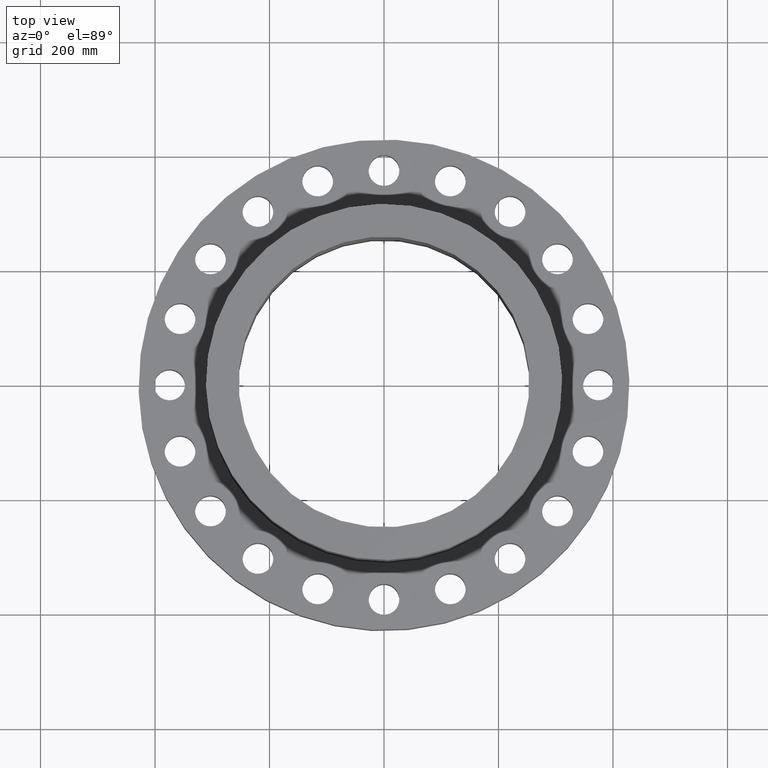
[diagram: clean part render]
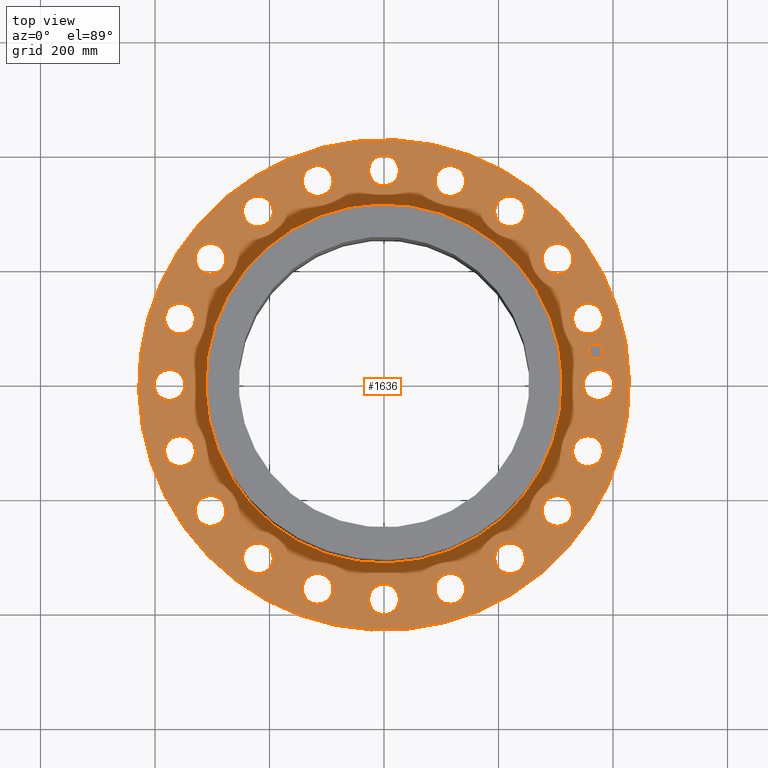
[diagram: same view with one face highlighted and labeled with its STEP entity id]
A machine part, top view. The second image highlights one B-rep face of the part: STEP entity #1636.
In plain terms, the highlighted planar face has unit normal (0, 0, -1).
Its self-contained STEP definition (entity closure, byte-faithful):
#51=AXIS2_PLACEMENT_3D('Circle Axis2P3D',#49,#50,$) ;
#470=AXIS2_PLACEMENT_3D('Circle Axis2P3D',#468,#469,$) ;
#494=AXIS2_PLACEMENT_3D('Circle Axis2P3D',#492,#493,$) ;
#513=AXIS2_PLACEMENT_3D('Circle Axis2P3D',#511,#512,$) ;
#530=AXIS2_PLACEMENT_3D('Circle Axis2P3D',#528,#529,$) ;
#565=AXIS2_PLACEMENT_3D('Circle Axis2P3D',#563,#564,$) ;
#722=AXIS2_PLACEMENT_3D('Circle Axis2P3D',#720,#721,$) ;
#741=AXIS2_PLACEMENT_3D('Circle Axis2P3D',#739,#740,$) ;
#765=AXIS2_PLACEMENT_3D('Circle Axis2P3D',#763,#764,$) ;
#784=AXIS2_PLACEMENT_3D('Circle Axis2P3D',#782,#783,$) ;
#808=AXIS2_PLACEMENT_3D('Circle Axis2P3D',#806,#807,$) ;
#827=AXIS2_PLACEMENT_3D('Circle Axis2P3D',#825,#826,$) ;
#851=AXIS2_PLACEMENT_3D('Circle Axis2P3D',#849,#850,$) ;
#870=AXIS2_PLACEMENT_3D('Circle Axis2P3D',#868,#869,$) ;
#894=AXIS2_PLACEMENT_3D('Circle Axis2P3D',#892,#893,$) ;
#913=AXIS2_PLACEMENT_3D('Circle Axis2P3D',#911,#912,$) ;
#937=AXIS2_PLACEMENT_3D('Circle Axis2P3D',#935,#936,$) ;
#956=AXIS2_PLACEMENT_3D('Circle Axis2P3D',#954,#955,$) ;
#980=AXIS2_PLACEMENT_3D('Circle Axis2P3D',#978,#979,$) ;
#999=AXIS2_PLACEMENT_3D('Circle Axis2P3D',#997,#998,$) ;
#1023=AXIS2_PLACEMENT_3D('Circle Axis2P3D',#1021,#1022,$) ;
#1042=AXIS2_PLACEMENT_3D('Circle Axis2P3D',#1040,#1041,$) ;
#1066=AXIS2_PLACEMENT_3D('Circle Axis2P3D',#1064,#1065,$) ;
#1085=AXIS2_PLACEMENT_3D('Circle Axis2P3D',#1083,#1084,$) ;
#1109=AXIS2_PLACEMENT_3D('Circle Axis2P3D',#1107,#1108,$) ;
#1128=AXIS2_PLACEMENT_3D('Circle Axis2P3D',#1126,#1127,$) ;
#1152=AXIS2_PLACEMENT_3D('Circle Axis2P3D',#1150,#1151,$) ;
#1171=AXIS2_PLACEMENT_3D('Circle Axis2P3D',#1169,#1170,$) ;
#1195=AXIS2_PLACEMENT_3D('Circle Axis2P3D',#1193,#1194,$) ;
#1214=AXIS2_PLACEMENT_3D('Circle Axis2P3D',#1212,#1213,$) ;
#1238=AXIS2_PLACEMENT_3D('Circle Axis2P3D',#1236,#1237,$) ;
#1257=AXIS2_PLACEMENT_3D('Circle Axis2P3D',#1255,#1256,$) ;
#1281=AXIS2_PLACEMENT_3D('Circle Axis2P3D',#1279,#1280,$) ;
#1300=AXIS2_PLACEMENT_3D('Circle Axis2P3D',#1298,#1299,$) ;
#1324=AXIS2_PLACEMENT_3D('Circle Axis2P3D',#1322,#1323,$) ;
#1343=AXIS2_PLACEMENT_3D('Circle Axis2P3D',#1341,#1342,$) ;
#1367=AXIS2_PLACEMENT_3D('Circle Axis2P3D',#1365,#1366,$) ;
#1386=AXIS2_PLACEMENT_3D('Circle Axis2P3D',#1384,#1385,$) ;
#1410=AXIS2_PLACEMENT_3D('Circle Axis2P3D',#1408,#1409,$) ;
#1429=AXIS2_PLACEMENT_3D('Circle Axis2P3D',#1427,#1428,$) ;
#1453=AXIS2_PLACEMENT_3D('Circle Axis2P3D',#1451,#1452,$) ;
#1472=AXIS2_PLACEMENT_3D('Circle Axis2P3D',#1470,#1471,$) ;
#1496=AXIS2_PLACEMENT_3D('Circle Axis2P3D',#1494,#1495,$) ;
#1515=AXIS2_PLACEMENT_3D('Circle Axis2P3D',#1513,#1514,$) ;
#1528=AXIS2_PLACEMENT_3D('Plane Axis2P3D',#1525,#1526,#1527) ;
#1620=AXIS2_PLACEMENT_3D('Circle Axis2P3D',#1618,#1619,$) ;
#1629=AXIS2_PLACEMENT_3D('Circle Axis2P3D',#1627,#1628,$) ;
#44=CARTESIAN_POINT('Vertex',(13.8197624845,-0.508191070922,4.25000000002)) ;
#49=CARTESIAN_POINT('Axis2P3D Location',(14.7500000001,0.,4.25000000002)) ;
#53=CARTESIAN_POINT('Vertex',(15.6802375157,0.508191070922,4.25000000002)) ;
#468=CARTESIAN_POINT('Axis2P3D Location',(14.7500000001,0.,4.25000000002)) ;
#489=CARTESIAN_POINT('Vertex',(-8.09030596398,-14.809205732,4.25000000002)) ;
#492=CARTESIAN_POINT('Axis2P3D Location',(0.,0.,4.25000000002)) ;
#496=CARTESIAN_POINT('Vertex',(8.09030596398,14.809205732,4.25000000002)) ;
#511=CARTESIAN_POINT('Axis2P3D Location',(0.,0.,4.25000000002)) ;
#528=CARTESIAN_POINT('Axis2P3D Location',(0.,0.,4.25000000002)) ;
#532=CARTESIAN_POINT('Vertex',(5.87296284792,10.7503863832,4.25000000002)) ;
#534=CARTESIAN_POINT('Vertex',(-5.87296284792,-10.7503863832,4.25000000002)) ;
#563=CARTESIAN_POINT('Axis2P3D Location',(0.,0.,4.25000000002)) ;
#717=CARTESIAN_POINT('Vertex',(12.9863354872,-4.75385989544,4.25000000002)) ;
#720=CARTESIAN_POINT('Axis2P3D Location',(14.0280836154,-4.55800066705,4.25000000002)) ;
#724=CARTESIAN_POINT('Vertex',(15.0698317436,-4.36214143865,4.25000000002)) ;
#739=CARTESIAN_POINT('Axis2P3D Location',(14.0280836154,-4.55800066705,4.25000000002)) ;
#760=CARTESIAN_POINT('Vertex',(10.8817154913,-8.53418779131,4.25000000002)) ;
#763=CARTESIAN_POINT('Axis2P3D Location',(11.9330006671,-8.66983247135,4.25000000002)) ;
#767=CARTESIAN_POINT('Vertex',(12.9842858428,-8.80547715139,4.25000000002)) ;
#782=CARTESIAN_POINT('Axis2P3D Location',(11.9330006671,-8.66983247135,4.25000000002)) ;
#803=CARTESIAN_POINT('Vertex',(7.71191736578,-11.479129925,4.25000000002)) ;
#806=CARTESIAN_POINT('Axis2P3D Location',(8.66983247135,-11.9330006671,4.25000000002)) ;
#810=CARTESIAN_POINT('Vertex',(9.62774757692,-12.3868714092,4.25000000002)) ;
#825=CARTESIAN_POINT('Axis2P3D Location',(8.66983247135,-11.9330006671,4.25000000002)) ;
#846=CARTESIAN_POINT('Vertex',(3.7872230364,-13.3004148418,4.25000000002)) ;
#849=CARTESIAN_POINT('Axis2P3D Location',(4.55800066705,-14.0280836154,4.25000000002)) ;
#853=CARTESIAN_POINT('Vertex',(5.3287782977,-14.755752389,4.25000000002)) ;
#868=CARTESIAN_POINT('Axis2P3D Location',(4.55800066705,-14.0280836154,4.25000000002)) ;
#889=CARTESIAN_POINT('Vertex',(-0.508191070922,-13.8197624845,4.25000000002)) ;
#892=CARTESIAN_POINT('Axis2P3D Location',(4.17833493703E-015,-14.7500000001,4.25000000002)) ;
#896=CARTESIAN_POINT('Vertex',(0.508191070922,-15.6802375157,4.25000000002)) ;
#911=CARTESIAN_POINT('Axis2P3D Location',(4.17833493703E-015,-14.7500000001,4.25000000002)) ;
#932=CARTESIAN_POINT('Vertex',(-4.75385989544,-12.9863354872,4.25000000002)) ;
#935=CARTESIAN_POINT('Axis2P3D Location',(-4.55800066705,-14.0280836154,4.25000000002)) ;
#939=CARTESIAN_POINT('Vertex',(-4.36214143865,-15.0698317436,4.25000000002)) ;
#954=CARTESIAN_POINT('Axis2P3D Location',(-4.55800066705,-14.0280836154,4.25000000002)) ;
#975=CARTESIAN_POINT('Vertex',(-8.53418779131,-10.8817154913,4.25000000002)) ;
#978=CARTESIAN_POINT('Axis2P3D Location',(-8.66983247135,-11.9330006671,4.25000000002)) ;
#982=CARTESIAN_POINT('Vertex',(-8.80547715139,-12.9842858428,4.25000000002)) ;
#997=CARTESIAN_POINT('Axis2P3D Location',(-8.66983247135,-11.9330006671,4.25000000002)) ;
#1018=CARTESIAN_POINT('Vertex',(-11.479129925,-7.71191736578,4.25000000002)) ;
#1021=CARTESIAN_POINT('Axis2P3D Location',(-11.9330006671,-8.66983247135,4.25000000002)) ;
#1025=CARTESIAN_POINT('Vertex',(-12.3868714092,-9.62774757692,4.25000000002)) ;
#1040=CARTESIAN_POINT('Axis2P3D Location',(-11.9330006671,-8.66983247135,4.25000000002)) ;
#1061=CARTESIAN_POINT('Vertex',(-13.3004148418,-3.7872230364,4.25000000002)) ;
#1064=CARTESIAN_POINT('Axis2P3D Location',(-14.0280836154,-4.55800066705,4.25000000002)) ;
#1068=CARTESIAN_POINT('Vertex',(-14.755752389,-5.3287782977,4.25000000002)) ;
#1083=CARTESIAN_POINT('Axis2P3D Location',(-14.0280836154,-4.55800066705,4.25000000002)) ;
#1104=CARTESIAN_POINT('Vertex',(-13.8197624845,0.508191070922,4.25000000002)) ;
#1107=CARTESIAN_POINT('Axis2P3D Location',(-14.7500000001,-8.35666987406E-015,4.25000000002)) ;
#1111=CARTESIAN_POINT('Vertex',(-15.6802375157,-0.508191070922,4.25000000002)) ;
#1126=CARTESIAN_POINT('Axis2P3D Location',(-14.7500000001,-8.35666987406E-015,4.25000000002)) ;
#1147=CARTESIAN_POINT('Vertex',(-12.9863354872,4.75385989544,4.25000000002)) ;
#1150=CARTESIAN_POINT('Axis2P3D Location',(-14.0280836154,4.55800066705,4.25000000002)) ;
#1154=CARTESIAN_POINT('Vertex',(-15.0698317436,4.36214143865,4.25000000002)) ;
#1169=CARTESIAN_POINT('Axis2P3D Location',(-14.0280836154,4.55800066705,4.25000000002)) ;
#1190=CARTESIAN_POINT('Vertex',(-10.8817154913,8.53418779131,4.25000000002)) ;
#1193=CARTESIAN_POINT('Axis2P3D Location',(-11.9330006671,8.66983247135,4.25000000002)) ;
#1197=CARTESIAN_POINT('Vertex',(-12.9842858428,8.80547715139,4.25000000002)) ;
#1212=CARTESIAN_POINT('Axis2P3D Location',(-11.9330006671,8.66983247135,4.25000000002)) ;
#1233=CARTESIAN_POINT('Vertex',(-7.71191736578,11.479129925,4.25000000002)) ;
#1236=CARTESIAN_POINT('Axis2P3D Location',(-8.66983247135,11.9330006671,4.25000000002)) ;
#1240=CARTESIAN_POINT('Vertex',(-9.62774757692,12.3868714092,4.25000000002)) ;
#1255=CARTESIAN_POINT('Axis2P3D Location',(-8.66983247135,11.9330006671,4.25000000002)) ;
#1276=CARTESIAN_POINT('Vertex',(-3.7872230364,13.3004148418,4.25000000002)) ;
#1279=CARTESIAN_POINT('Axis2P3D Location',(-4.55800066705,14.0280836154,4.25000000002)) ;
#1283=CARTESIAN_POINT('Vertex',(-5.3287782977,14.755752389,4.25000000002)) ;
#1298=CARTESIAN_POINT('Axis2P3D Location',(-4.55800066705,14.0280836154,4.25000000002)) ;
#1319=CARTESIAN_POINT('Vertex',(0.508191070922,13.8197624845,4.25000000002)) ;
#1322=CARTESIAN_POINT('Axis2P3D Location',(-1.58101627338E-014,14.7500000001,4.25000000002)) ;
#1326=CARTESIAN_POINT('Vertex',(-0.508191070923,15.6802375157,4.25000000002)) ;
#1341=CARTESIAN_POINT('Axis2P3D Location',(-1.58101627338E-014,14.7500000001,4.25000000002)) ;
#1362=CARTESIAN_POINT('Vertex',(4.75385989544,12.9863354872,4.25000000002)) ;
#1365=CARTESIAN_POINT('Axis2P3D Location',(4.55800066705,14.0280836154,4.25000000002)) ;
#1369=CARTESIAN_POINT('Vertex',(4.36214143865,15.0698317436,4.25000000002)) ;
#1384=CARTESIAN_POINT('Axis2P3D Location',(4.55800066705,14.0280836154,4.25000000002)) ;
#1405=CARTESIAN_POINT('Vertex',(8.53418779131,10.8817154913,4.25000000002)) ;
#1408=CARTESIAN_POINT('Axis2P3D Location',(8.66983247135,11.9330006671,4.25000000002)) ;
#1412=CARTESIAN_POINT('Vertex',(8.80547715139,12.9842858428,4.25000000002)) ;
#1427=CARTESIAN_POINT('Axis2P3D Location',(8.66983247135,11.9330006671,4.25000000002)) ;
#1448=CARTESIAN_POINT('Vertex',(11.479129925,7.71191736578,4.25000000002)) ;
#1451=CARTESIAN_POINT('Axis2P3D Location',(11.9330006671,8.66983247135,4.25000000002)) ;
#1455=CARTESIAN_POINT('Vertex',(12.3868714092,9.62774757692,4.25000000002)) ;
#1470=CARTESIAN_POINT('Axis2P3D Location',(11.9330006671,8.66983247135,4.25000000002)) ;
#1491=CARTESIAN_POINT('Vertex',(13.3004148418,3.7872230364,4.25000000002)) ;
#1494=CARTESIAN_POINT('Axis2P3D Location',(14.0280836154,4.55800066705,4.25000000002)) ;
#1498=CARTESIAN_POINT('Vertex',(14.755752389,5.3287782977,4.25000000002)) ;
#1513=CARTESIAN_POINT('Axis2P3D Location',(14.0280836154,4.55800066705,4.25000000002)) ;
#1525=CARTESIAN_POINT('Axis2P3D Location',(0.,16.8750000001,4.25000000002)) ;
#1618=CARTESIAN_POINT('Axis2P3D Location',(14.5684030238,2.30740835935,4.25000000002)) ;
#1622=CARTESIAN_POINT('Vertex',(14.6466202556,1.81356419399,4.25000000002)) ;
#1624=CARTESIAN_POINT('Vertex',(14.4901857921,2.80125252471,4.25000000002)) ;
#1627=CARTESIAN_POINT('Axis2P3D Location',(14.5684030238,2.30740835935,4.25000000002)) ;
#50=DIRECTION('Axis2P3D Direction',(0.,-0.,0.0393700787402)) ;
#469=DIRECTION('Axis2P3D Direction',(0.,-0.,0.0393700787402)) ;
#493=DIRECTION('Axis2P3D Direction',(0.,0.,-0.0393700787402)) ;
#512=DIRECTION('Axis2P3D Direction',(0.,0.,-0.0393700787402)) ;
#529=DIRECTION('Axis2P3D Direction',(0.,0.,-0.0393700787402)) ;
#564=DIRECTION('Axis2P3D Direction',(0.,0.,-0.0393700787402)) ;
#721=DIRECTION('Axis2P3D Direction',(-0.,0.,0.0393700787402)) ;
#740=DIRECTION('Axis2P3D Direction',(-0.,0.,0.0393700787402)) ;
#764=DIRECTION('Axis2P3D Direction',(-0.,0.,0.0393700787402)) ;
#783=DIRECTION('Axis2P3D Direction',(-0.,0.,0.0393700787402)) ;
#807=DIRECTION('Axis2P3D Direction',(-0.,0.,0.0393700787402)) ;
#826=DIRECTION('Axis2P3D Direction',(-0.,0.,0.0393700787402)) ;
#850=DIRECTION('Axis2P3D Direction',(-0.,0.,0.0393700787402)) ;
#869=DIRECTION('Axis2P3D Direction',(-0.,0.,0.0393700787402)) ;
#893=DIRECTION('Axis2P3D Direction',(-0.,0.,0.0393700787402)) ;
#912=DIRECTION('Axis2P3D Direction',(-0.,0.,0.0393700787402)) ;
#936=DIRECTION('Axis2P3D Direction',(0.,0.,0.0393700787402)) ;
#955=DIRECTION('Axis2P3D Direction',(0.,0.,0.0393700787402)) ;
#979=DIRECTION('Axis2P3D Direction',(0.,0.,0.0393700787402)) ;
#998=DIRECTION('Axis2P3D Direction',(0.,0.,0.0393700787402)) ;
#1022=DIRECTION('Axis2P3D Direction',(0.,0.,0.0393700787402)) ;
#1041=DIRECTION('Axis2P3D Direction',(0.,0.,0.0393700787402)) ;
#1065=DIRECTION('Axis2P3D Direction',(0.,0.,0.0393700787402)) ;
#1084=DIRECTION('Axis2P3D Direction',(0.,0.,0.0393700787402)) ;
#1108=DIRECTION('Axis2P3D Direction',(0.,0.,0.0393700787402)) ;
#1127=DIRECTION('Axis2P3D Direction',(0.,0.,0.0393700787402)) ;
#1151=DIRECTION('Axis2P3D Direction',(0.,0.,0.0393700787402)) ;
#1170=DIRECTION('Axis2P3D Direction',(0.,0.,0.0393700787402)) ;
#1194=DIRECTION('Axis2P3D Direction',(0.,0.,0.0393700787402)) ;
#1213=DIRECTION('Axis2P3D Direction',(0.,0.,0.0393700787402)) ;
#1237=DIRECTION('Axis2P3D Direction',(0.,0.,0.0393700787402)) ;
#1256=DIRECTION('Axis2P3D Direction',(0.,0.,0.0393700787402)) ;
#1280=DIRECTION('Axis2P3D Direction',(0.,0.,0.0393700787402)) ;
#1299=DIRECTION('Axis2P3D Direction',(0.,0.,0.0393700787402)) ;
#1323=DIRECTION('Axis2P3D Direction',(0.,0.,0.0393700787402)) ;
#1342=DIRECTION('Axis2P3D Direction',(0.,0.,0.0393700787402)) ;
#1366=DIRECTION('Axis2P3D Direction',(0.,-0.,0.0393700787402)) ;
#1385=DIRECTION('Axis2P3D Direction',(0.,-0.,0.0393700787402)) ;
#1409=DIRECTION('Axis2P3D Direction',(0.,-0.,0.0393700787402)) ;
#1428=DIRECTION('Axis2P3D Direction',(0.,-0.,0.0393700787402)) ;
#1452=DIRECTION('Axis2P3D Direction',(0.,-0.,0.0393700787402)) ;
#1471=DIRECTION('Axis2P3D Direction',(0.,-0.,0.0393700787402)) ;
#1495=DIRECTION('Axis2P3D Direction',(0.,-0.,0.0393700787402)) ;
#1514=DIRECTION('Axis2P3D Direction',(0.,-0.,0.0393700787402)) ;
#1526=DIRECTION('Axis2P3D Direction',(0.,0.,-0.0393700787402)) ;
#1527=DIRECTION('Axis2P3D XDirection',(0.0393700787402,0.,0.)) ;
#1619=DIRECTION('Axis2P3D Direction',(0.,0.,-0.0393700787402)) ;
#1628=DIRECTION('Axis2P3D Direction',(0.,0.,-0.0393700787402)) ;
#1531=ORIENTED_EDGE('',*,*,#515,.F.) ;
#1532=ORIENTED_EDGE('',*,*,#498,.F.) ;
#1535=ORIENTED_EDGE('',*,*,#55,.T.) ;
#1536=ORIENTED_EDGE('',*,*,#472,.T.) ;
#1539=ORIENTED_EDGE('',*,*,#567,.T.) ;
#1540=ORIENTED_EDGE('',*,*,#536,.T.) ;
#1543=ORIENTED_EDGE('',*,*,#743,.T.) ;
#1544=ORIENTED_EDGE('',*,*,#726,.T.) ;
#1547=ORIENTED_EDGE('',*,*,#786,.T.) ;
#1548=ORIENTED_EDGE('',*,*,#769,.T.) ;
#1551=ORIENTED_EDGE('',*,*,#829,.T.) ;
#1552=ORIENTED_EDGE('',*,*,#812,.T.) ;
#1555=ORIENTED_EDGE('',*,*,#872,.T.) ;
#1556=ORIENTED_EDGE('',*,*,#855,.T.) ;
#1559=ORIENTED_EDGE('',*,*,#915,.T.) ;
#1560=ORIENTED_EDGE('',*,*,#898,.T.) ;
#1563=ORIENTED_EDGE('',*,*,#958,.T.) ;
#1564=ORIENTED_EDGE('',*,*,#941,.T.) ;
#1567=ORIENTED_EDGE('',*,*,#1001,.T.) ;
#1568=ORIENTED_EDGE('',*,*,#984,.T.) ;
#1571=ORIENTED_EDGE('',*,*,#1044,.T.) ;
#1572=ORIENTED_EDGE('',*,*,#1027,.T.) ;
#1575=ORIENTED_EDGE('',*,*,#1087,.T.) ;
#1576=ORIENTED_EDGE('',*,*,#1070,.T.) ;
#1579=ORIENTED_EDGE('',*,*,#1130,.T.) ;
#1580=ORIENTED_EDGE('',*,*,#1113,.T.) ;
#1583=ORIENTED_EDGE('',*,*,#1173,.T.) ;
#1584=ORIENTED_EDGE('',*,*,#1156,.T.) ;
#1587=ORIENTED_EDGE('',*,*,#1216,.T.) ;
#1588=ORIENTED_EDGE('',*,*,#1199,.T.) ;
#1591=ORIENTED_EDGE('',*,*,#1259,.T.) ;
#1592=ORIENTED_EDGE('',*,*,#1242,.T.) ;
#1595=ORIENTED_EDGE('',*,*,#1302,.T.) ;
#1596=ORIENTED_EDGE('',*,*,#1285,.T.) ;
#1599=ORIENTED_EDGE('',*,*,#1345,.T.) ;
#1600=ORIENTED_EDGE('',*,*,#1328,.T.) ;
#1603=ORIENTED_EDGE('',*,*,#1388,.T.) ;
#1604=ORIENTED_EDGE('',*,*,#1371,.T.) ;
#1607=ORIENTED_EDGE('',*,*,#1431,.T.) ;
#1608=ORIENTED_EDGE('',*,*,#1414,.T.) ;
#1611=ORIENTED_EDGE('',*,*,#1474,.T.) ;
#1612=ORIENTED_EDGE('',*,*,#1457,.T.) ;
#1615=ORIENTED_EDGE('',*,*,#1517,.T.) ;
#1616=ORIENTED_EDGE('',*,*,#1500,.T.) ;
#1633=ORIENTED_EDGE('',*,*,#1626,.F.) ;
#1634=ORIENTED_EDGE('',*,*,#1631,.F.) ;
#1537=FACE_BOUND('',#1534,.T.) ;
#1541=FACE_BOUND('',#1538,.T.) ;
#1545=FACE_BOUND('',#1542,.T.) ;
#1549=FACE_BOUND('',#1546,.T.) ;
#1553=FACE_BOUND('',#1550,.T.) ;
#1557=FACE_BOUND('',#1554,.T.) ;
#1561=FACE_BOUND('',#1558,.T.) ;
#1565=FACE_BOUND('',#1562,.T.) ;
#1569=FACE_BOUND('',#1566,.T.) ;
#1573=FACE_BOUND('',#1570,.T.) ;
#1577=FACE_BOUND('',#1574,.T.) ;
#1581=FACE_BOUND('',#1578,.T.) ;
#1585=FACE_BOUND('',#1582,.T.) ;
#1589=FACE_BOUND('',#1586,.T.) ;
#1593=FACE_BOUND('',#1590,.T.) ;
#1597=FACE_BOUND('',#1594,.T.) ;
#1601=FACE_BOUND('',#1598,.T.) ;
#1605=FACE_BOUND('',#1602,.T.) ;
#1609=FACE_BOUND('',#1606,.T.) ;
#1613=FACE_BOUND('',#1610,.T.) ;
#1617=FACE_BOUND('',#1614,.T.) ;
#1635=FACE_BOUND('',#1632,.T.) ;
#1636=ADVANCED_FACE('PartBody',(#1533,#1537,#1541,#1545,#1549,#1553,#1557,#1561,#1565,#1569,#1573,#1577,#1581,#1585,#1589,#1593,#1597,#1601,#1605,#1609,#1613,#1617,#1635),#1529,.F.) ;
#52=CIRCLE('generated circle',#51,1.06) ;
#471=CIRCLE('generated circle',#470,1.06) ;
#495=CIRCLE('generated circle',#494,16.8750000001) ;
#514=CIRCLE('generated circle',#513,16.8750000001) ;
#531=CIRCLE('generated circle',#530,12.25) ;
#566=CIRCLE('generated circle',#565,12.25) ;
#723=CIRCLE('generated circle',#722,1.06) ;
#742=CIRCLE('generated circle',#741,1.06) ;
#766=CIRCLE('generated circle',#765,1.06) ;
#785=CIRCLE('generated circle',#784,1.06) ;
#809=CIRCLE('generated circle',#808,1.06) ;
#828=CIRCLE('generated circle',#827,1.06) ;
#852=CIRCLE('generated circle',#851,1.06) ;
#871=CIRCLE('generated circle',#870,1.06) ;
#895=CIRCLE('generated circle',#894,1.06) ;
#914=CIRCLE('generated circle',#913,1.06) ;
#938=CIRCLE('generated circle',#937,1.06) ;
#957=CIRCLE('generated circle',#956,1.06) ;
#981=CIRCLE('generated circle',#980,1.06) ;
#1000=CIRCLE('generated circle',#999,1.06) ;
#1024=CIRCLE('generated circle',#1023,1.06) ;
#1043=CIRCLE('generated circle',#1042,1.06) ;
#1067=CIRCLE('generated circle',#1066,1.06) ;
#1086=CIRCLE('generated circle',#1085,1.06) ;
#1110=CIRCLE('generated circle',#1109,1.06) ;
#1129=CIRCLE('generated circle',#1128,1.06) ;
#1153=CIRCLE('generated circle',#1152,1.06) ;
#1172=CIRCLE('generated circle',#1171,1.06) ;
#1196=CIRCLE('generated circle',#1195,1.06) ;
#1215=CIRCLE('generated circle',#1214,1.06) ;
#1239=CIRCLE('generated circle',#1238,1.06) ;
#1258=CIRCLE('generated circle',#1257,1.06) ;
#1282=CIRCLE('generated circle',#1281,1.06) ;
#1301=CIRCLE('generated circle',#1300,1.06) ;
#1325=CIRCLE('generated circle',#1324,1.06) ;
#1344=CIRCLE('generated circle',#1343,1.06) ;
#1368=CIRCLE('generated circle',#1367,1.06) ;
#1387=CIRCLE('generated circle',#1386,1.06) ;
#1411=CIRCLE('generated circle',#1410,1.06) ;
#1430=CIRCLE('generated circle',#1429,1.06) ;
#1454=CIRCLE('generated circle',#1453,1.06) ;
#1473=CIRCLE('generated circle',#1472,1.06) ;
#1497=CIRCLE('generated circle',#1496,1.06) ;
#1516=CIRCLE('generated circle',#1515,1.06) ;
#1621=CIRCLE('generated circle',#1620,0.499999995002) ;
#1630=CIRCLE('generated circle',#1629,0.499999995002) ;
#55=EDGE_CURVE('',#54,#45,#52,.F.) ;
#472=EDGE_CURVE('',#45,#54,#471,.F.) ;
#498=EDGE_CURVE('',#490,#497,#495,.T.) ;
#515=EDGE_CURVE('',#497,#490,#514,.T.) ;
#536=EDGE_CURVE('',#533,#535,#531,.T.) ;
#567=EDGE_CURVE('',#535,#533,#566,.T.) ;
#726=EDGE_CURVE('',#725,#718,#723,.F.) ;
#743=EDGE_CURVE('',#718,#725,#742,.F.) ;
#769=EDGE_CURVE('',#768,#761,#766,.F.) ;
#786=EDGE_CURVE('',#761,#768,#785,.F.) ;
#812=EDGE_CURVE('',#811,#804,#809,.F.) ;
#829=EDGE_CURVE('',#804,#811,#828,.F.) ;
#855=EDGE_CURVE('',#854,#847,#852,.F.) ;
#872=EDGE_CURVE('',#847,#854,#871,.F.) ;
#898=EDGE_CURVE('',#897,#890,#895,.F.) ;
#915=EDGE_CURVE('',#890,#897,#914,.F.) ;
#941=EDGE_CURVE('',#940,#933,#938,.F.) ;
#958=EDGE_CURVE('',#933,#940,#957,.F.) ;
#984=EDGE_CURVE('',#983,#976,#981,.F.) ;
#1001=EDGE_CURVE('',#976,#983,#1000,.F.) ;
#1027=EDGE_CURVE('',#1026,#1019,#1024,.F.) ;
#1044=EDGE_CURVE('',#1019,#1026,#1043,.F.) ;
#1070=EDGE_CURVE('',#1069,#1062,#1067,.F.) ;
#1087=EDGE_CURVE('',#1062,#1069,#1086,.F.) ;
#1113=EDGE_CURVE('',#1112,#1105,#1110,.F.) ;
#1130=EDGE_CURVE('',#1105,#1112,#1129,.F.) ;
#1156=EDGE_CURVE('',#1155,#1148,#1153,.F.) ;
#1173=EDGE_CURVE('',#1148,#1155,#1172,.F.) ;
#1199=EDGE_CURVE('',#1198,#1191,#1196,.F.) ;
#1216=EDGE_CURVE('',#1191,#1198,#1215,.F.) ;
#1242=EDGE_CURVE('',#1241,#1234,#1239,.F.) ;
#1259=EDGE_CURVE('',#1234,#1241,#1258,.F.) ;
#1285=EDGE_CURVE('',#1284,#1277,#1282,.F.) ;
#1302=EDGE_CURVE('',#1277,#1284,#1301,.F.) ;
#1328=EDGE_CURVE('',#1327,#1320,#1325,.F.) ;
#1345=EDGE_CURVE('',#1320,#1327,#1344,.F.) ;
#1371=EDGE_CURVE('',#1370,#1363,#1368,.F.) ;
#1388=EDGE_CURVE('',#1363,#1370,#1387,.F.) ;
#1414=EDGE_CURVE('',#1413,#1406,#1411,.F.) ;
#1431=EDGE_CURVE('',#1406,#1413,#1430,.F.) ;
#1457=EDGE_CURVE('',#1456,#1449,#1454,.F.) ;
#1474=EDGE_CURVE('',#1449,#1456,#1473,.F.) ;
#1500=EDGE_CURVE('',#1499,#1492,#1497,.F.) ;
#1517=EDGE_CURVE('',#1492,#1499,#1516,.F.) ;
#1626=EDGE_CURVE('',#1623,#1625,#1621,.F.) ;
#1631=EDGE_CURVE('',#1625,#1623,#1630,.F.) ;
#1530=EDGE_LOOP('',(#1531,#1532)) ;
#1534=EDGE_LOOP('',(#1535,#1536)) ;
#1538=EDGE_LOOP('',(#1539,#1540)) ;
#1542=EDGE_LOOP('',(#1543,#1544)) ;
#1546=EDGE_LOOP('',(#1547,#1548)) ;
#1550=EDGE_LOOP('',(#1551,#1552)) ;
#1554=EDGE_LOOP('',(#1555,#1556)) ;
#1558=EDGE_LOOP('',(#1559,#1560)) ;
#1562=EDGE_LOOP('',(#1563,#1564)) ;
#1566=EDGE_LOOP('',(#1567,#1568)) ;
#1570=EDGE_LOOP('',(#1571,#1572)) ;
#1574=EDGE_LOOP('',(#1575,#1576)) ;
#1578=EDGE_LOOP('',(#1579,#1580)) ;
#1582=EDGE_LOOP('',(#1583,#1584)) ;
#1586=EDGE_LOOP('',(#1587,#1588)) ;
#1590=EDGE_LOOP('',(#1591,#1592)) ;
#1594=EDGE_LOOP('',(#1595,#1596)) ;
#1598=EDGE_LOOP('',(#1599,#1600)) ;
#1602=EDGE_LOOP('',(#1603,#1604)) ;
#1606=EDGE_LOOP('',(#1607,#1608)) ;
#1610=EDGE_LOOP('',(#1611,#1612)) ;
#1614=EDGE_LOOP('',(#1615,#1616)) ;
#1632=EDGE_LOOP('',(#1633,#1634)) ;
#1533=FACE_OUTER_BOUND('',#1530,.T.) ;
#1529=PLANE('',#1528) ;
#45=VERTEX_POINT('',#44) ;
#54=VERTEX_POINT('',#53) ;
#490=VERTEX_POINT('',#489) ;
#497=VERTEX_POINT('',#496) ;
#533=VERTEX_POINT('',#532) ;
#535=VERTEX_POINT('',#534) ;
#718=VERTEX_POINT('',#717) ;
#725=VERTEX_POINT('',#724) ;
#761=VERTEX_POINT('',#760) ;
#768=VERTEX_POINT('',#767) ;
#804=VERTEX_POINT('',#803) ;
#811=VERTEX_POINT('',#810) ;
#847=VERTEX_POINT('',#846) ;
#854=VERTEX_POINT('',#853) ;
#890=VERTEX_POINT('',#889) ;
#897=VERTEX_POINT('',#896) ;
#933=VERTEX_POINT('',#932) ;
#940=VERTEX_POINT('',#939) ;
#976=VERTEX_POINT('',#975) ;
#983=VERTEX_POINT('',#982) ;
#1019=VERTEX_POINT('',#1018) ;
#1026=VERTEX_POINT('',#1025) ;
#1062=VERTEX_POINT('',#1061) ;
#1069=VERTEX_POINT('',#1068) ;
#1105=VERTEX_POINT('',#1104) ;
#1112=VERTEX_POINT('',#1111) ;
#1148=VERTEX_POINT('',#1147) ;
#1155=VERTEX_POINT('',#1154) ;
#1191=VERTEX_POINT('',#1190) ;
#1198=VERTEX_POINT('',#1197) ;
#1234=VERTEX_POINT('',#1233) ;
#1241=VERTEX_POINT('',#1240) ;
#1277=VERTEX_POINT('',#1276) ;
#1284=VERTEX_POINT('',#1283) ;
#1320=VERTEX_POINT('',#1319) ;
#1327=VERTEX_POINT('',#1326) ;
#1363=VERTEX_POINT('',#1362) ;
#1370=VERTEX_POINT('',#1369) ;
#1406=VERTEX_POINT('',#1405) ;
#1413=VERTEX_POINT('',#1412) ;
#1449=VERTEX_POINT('',#1448) ;
#1456=VERTEX_POINT('',#1455) ;
#1492=VERTEX_POINT('',#1491) ;
#1499=VERTEX_POINT('',#1498) ;
#1623=VERTEX_POINT('',#1622) ;
#1625=VERTEX_POINT('',#1624) ;